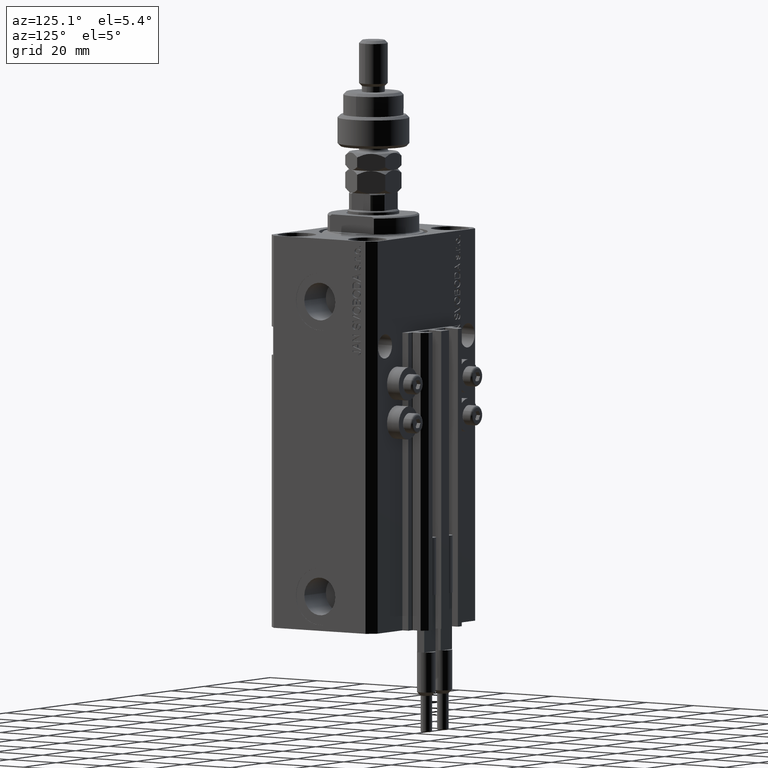
[diagram: clean part render]
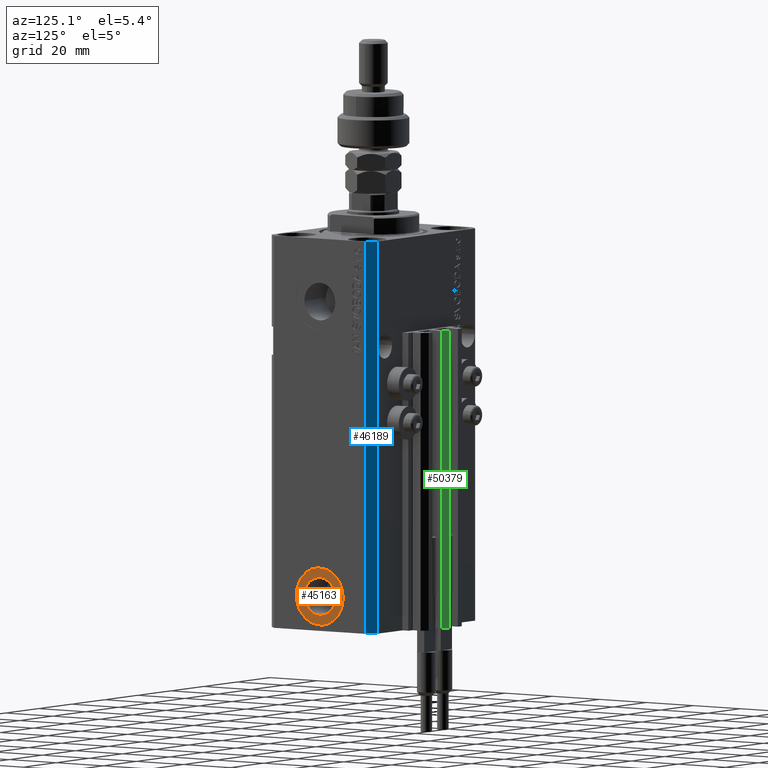
[diagram: same view with three faces highlighted in distinct colors, each labeled with its STEP entity id]
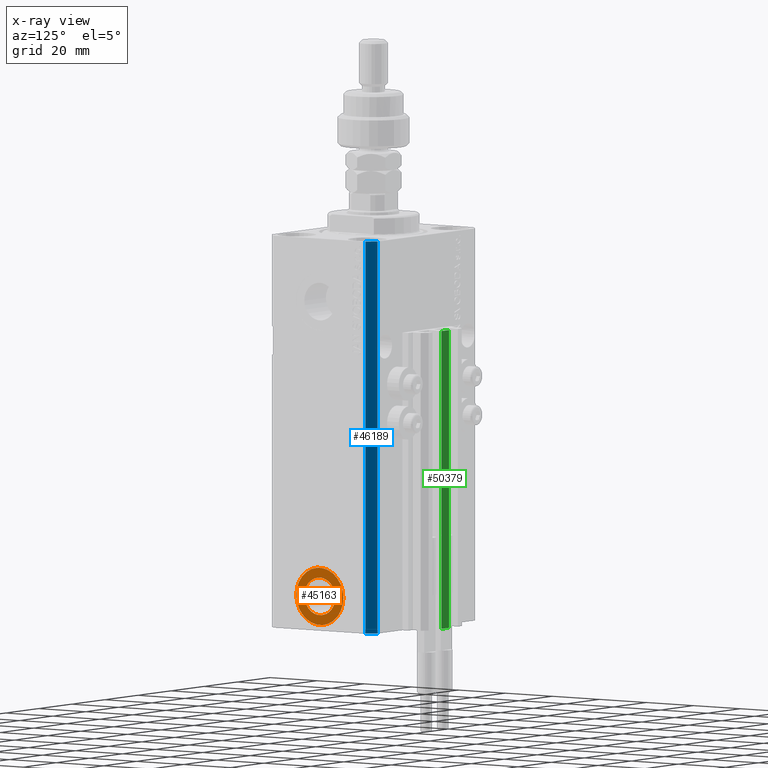
[diagram: x-ray of the same camera — body ghosted, the three highlighted faces saturated]
A machine part, auxiliary view with three faces highlighted in distinct colors.
The next image is the same camera in x-ray (body ghosted, the three faces saturated) — at least one of them is partly hidden behind the body in this view.
Their STEP definitions:

[orange] entity #45163 — the highlighted planar face has unit normal (1, -0, 0).
#2409 = DIRECTION ( 'NONE',  ( 1.318389841742372287E-14, 1.000000000000000000, 0.000000000000000000 ) ) ;
#2865 = CARTESIAN_POINT ( 'NONE',  ( 32.39999999999677271, -4.323464663203420885E-13, -125.0000000000000000 ) ) ;
#3165 = FACE_BOUND ( 'NONE', #19296, .T. ) ;
#6316 = CARTESIAN_POINT ( 'NONE',  ( 32.39999999999677271, -4.323464663203420885E-13, -125.0000000000000000 ) ) ;
#6554 = DIRECTION ( 'NONE',  ( 1.000000000000000000, -1.334402673828349134E-14, 0.000000000000000000 ) ) ;
#7470 = ORIENTED_EDGE ( 'NONE', *, *, #29738, .T. ) ;
#7518 = DIRECTION ( 'NONE',  ( 1.370906090437601279E-14, 1.000000000000000000, 0.000000000000000000 ) ) ;
#8111 = VERTEX_POINT ( 'NONE', #48959 ) ;
#9018 = CARTESIAN_POINT ( 'NONE',  ( 32.39999999999686509, 6.579999999999554205, -125.0000000000000000 ) ) ;
#10446 = FACE_OUTER_BOUND ( 'NONE', #27340, .T. ) ;
#12345 = CARTESIAN_POINT ( 'NONE',  ( 32.39999999999677271, -4.323464663203420885E-13, -125.0000000000000000 ) ) ;
#14669 = ORIENTED_EDGE ( 'NONE', *, *, #47160, .F. ) ;
#15347 = PLANE ( 'NONE',  #45874 ) ;
#16655 = DIRECTION ( 'NONE',  ( 1.000000000000000000, -1.334402673828349134E-14, 0.000000000000000000 ) ) ;
#17622 = DIRECTION ( 'NONE',  ( 1.370906090437601279E-14, 1.000000000000000000, 0.000000000000000000 ) ) ;
#18605 = CIRCLE ( 'NONE', #50102, 6.579999999999985860 ) ;
#19296 = EDGE_LOOP ( 'NONE', ( #41441, #14669 ) ) ;
#19335 = VERTEX_POINT ( 'NONE', #20654 ) ;
#20012 = CIRCLE ( 'NONE', #47358, 10.00000000000000888 ) ;
#20654 = CARTESIAN_POINT ( 'NONE',  ( 32.39999999999663771, -10.00000000000044054, -125.0000000000000000 ) ) ;
#20751 = AXIS2_PLACEMENT_3D ( 'NONE', #12345, #21147, #33096 ) ;
#21147 = DIRECTION ( 'NONE',  ( 1.000000000000000000, -1.334402673828349134E-14, 0.000000000000000000 ) ) ;
#22366 = DIRECTION ( 'NONE',  ( 1.334402673828349134E-14, 1.000000000000000000, 0.000000000000000000 ) ) ;
#22898 = ORIENTED_EDGE ( 'NONE', *, *, #28367, .T. ) ;
#23267 = CIRCLE ( 'NONE', #20751, 10.00000000000000888 ) ;
#24455 = AXIS2_PLACEMENT_3D ( 'NONE', #49797, #16655, #17622 ) ;
#26978 = CIRCLE ( 'NONE', #24455, 6.579999999999985860 ) ;
#27340 = EDGE_LOOP ( 'NONE', ( #22898, #7470 ) ) ;
#27399 = VERTEX_POINT ( 'NONE', #9018 ) ;
#28367 = EDGE_CURVE ( 'NONE', #8111, #19335, #23267, .T. ) ;
#29096 = VERTEX_POINT ( 'NONE', #34957 ) ;
#29738 = EDGE_CURVE ( 'NONE', #19335, #8111, #20012, .T. ) ;
#33096 = DIRECTION ( 'NONE',  ( 1.318389841742372287E-14, 1.000000000000000000, 0.000000000000000000 ) ) ;
#34957 = CARTESIAN_POINT ( 'NONE',  ( 32.39999999999668034, -6.580000000000417515, -125.0000000000000000 ) ) ;
#38919 = DIRECTION ( 'NONE',  ( 1.000000000000000000, -1.334402673828349134E-14, 0.000000000000000000 ) ) ;
#41441 = ORIENTED_EDGE ( 'NONE', *, *, #49029, .F. ) ;
#42368 = DIRECTION ( 'NONE',  ( 1.000000000000000000, -1.334402673828349134E-14, 0.000000000000000000 ) ) ;
#45163 = ADVANCED_FACE ( 'NONE', ( #3165, #10446 ), #15347, .T. ) ;
#45874 = AXIS2_PLACEMENT_3D ( 'NONE', #46251, #6554, #22366 ) ;
#46251 = CARTESIAN_POINT ( 'NONE',  ( 32.39999999999677271, -4.323464663203420885E-13, -125.0000000000000000 ) ) ;
#47160 = EDGE_CURVE ( 'NONE', #29096, #27399, #18605, .T. ) ;
#47358 = AXIS2_PLACEMENT_3D ( 'NONE', #6316, #42368, #2409 ) ;
#48959 = CARTESIAN_POINT ( 'NONE',  ( 32.39999999999690061, 9.999999999999577227, -125.0000000000000000 ) ) ;
#49029 = EDGE_CURVE ( 'NONE', #27399, #29096, #26978, .T. ) ;
#49797 = CARTESIAN_POINT ( 'NONE',  ( 32.39999999999677271, -4.323464663203420885E-13, -125.0000000000000000 ) ) ;
#50102 = AXIS2_PLACEMENT_3D ( 'NONE', #2865, #38919, #7518 ) ;

[blue] entity #46189 — the highlighted planar face has unit normal (0.7071, 0.7071, 0).
#1816 = VECTOR ( 'NONE', #38917, 1000.000000000000000 ) ;
#2021 = CARTESIAN_POINT ( 'NONE',  ( 29.49999999999707967, 22.49999999999951328, 0.000000000000000000 ) ) ;
#3079 = ORIENTED_EDGE ( 'NONE', *, *, #37578, .T. ) ;
#4704 = CARTESIAN_POINT ( 'NONE',  ( 32.49999999999702993, 19.49999999999945999, -137.0000000000000000 ) ) ;
#5546 = VERTEX_POINT ( 'NONE', #32777 ) ;
#8846 = PLANE ( 'NONE',  #35133 ) ;
#9981 = VECTOR ( 'NONE', #20573, 1000.000000000000000 ) ;
#12531 = LINE ( 'NONE', #19299, #29008 ) ;
#15240 = VERTEX_POINT ( 'NONE', #43290 ) ;
#16483 = ORIENTED_EDGE ( 'NONE', *, *, #34601, .F. ) ;
#19188 = LINE ( 'NONE', #43080, #1816 ) ;
#19299 = CARTESIAN_POINT ( 'NONE',  ( 32.49999999999702993, 19.49999999999945999, -137.0000000000000000 ) ) ;
#19764 = FACE_OUTER_BOUND ( 'NONE', #27534, .T. ) ;
#20010 = DIRECTION ( 'NONE',  ( 0.7071067811865597852, 0.7071067811865353603, -0.000000000000000000 ) ) ;
#20573 = DIRECTION ( 'NONE',  ( 0.000000000000000000, 0.000000000000000000, 1.000000000000000000 ) ) ;
#21250 = LINE ( 'NONE', #48256, #37391 ) ;
#26792 = EDGE_CURVE ( 'NONE', #15240, #5546, #12531, .T. ) ;
#27519 = EDGE_CURVE ( 'NONE', #36885, #31669, #32019, .T. ) ;
#27534 = EDGE_LOOP ( 'NONE', ( #16483, #45632, #3079, #28262 ) ) ;
#27810 = DIRECTION ( 'NONE',  ( -0.7071067811865353603, 0.7071067811865597852, 0.000000000000000000 ) ) ;
#28262 = ORIENTED_EDGE ( 'NONE', *, *, #27519, .T. ) ;
#29008 = VECTOR ( 'NONE', #43185, 1000.000000000000000 ) ;
#29544 = CARTESIAN_POINT ( 'NONE',  ( 29.49999999999707967, 22.49999999999951328, -137.0000000000000000 ) ) ;
#31669 = VERTEX_POINT ( 'NONE', #2021 ) ;
#32019 = LINE ( 'NONE', #44708, #9981 ) ;
#32777 = CARTESIAN_POINT ( 'NONE',  ( 32.49999999999702993, 19.49999999999945999, 0.000000000000000000 ) ) ;
#34601 = EDGE_CURVE ( 'NONE', #5546, #31669, #19188, .T. ) ;
#35133 = AXIS2_PLACEMENT_3D ( 'NONE', #4704, #20010, #27810 ) ;
#36885 = VERTEX_POINT ( 'NONE', #29544 ) ;
#37391 = VECTOR ( 'NONE', #40214, 1000.000000000000000 ) ;
#37578 = EDGE_CURVE ( 'NONE', #15240, #36885, #21250, .T. ) ;
#38917 = DIRECTION ( 'NONE',  ( -0.7071067811865352493, 0.7071067811865597852, 0.000000000000000000 ) ) ;
#40214 = DIRECTION ( 'NONE',  ( -0.7071067811865352493, 0.7071067811865597852, 0.000000000000000000 ) ) ;
#43080 = CARTESIAN_POINT ( 'NONE',  ( 32.49999999999702993, 19.49999999999945999, 0.000000000000000000 ) ) ;
#43185 = DIRECTION ( 'NONE',  ( 0.000000000000000000, 0.000000000000000000, 1.000000000000000000 ) ) ;
#43290 = CARTESIAN_POINT ( 'NONE',  ( 32.49999999999702993, 19.49999999999945999, -137.0000000000000000 ) ) ;
#44708 = CARTESIAN_POINT ( 'NONE',  ( 29.49999999999707967, 22.49999999999951328, -137.0000000000000000 ) ) ;
#45632 = ORIENTED_EDGE ( 'NONE', *, *, #26792, .F. ) ;
#46189 = ADVANCED_FACE ( 'NONE', ( #19764 ), #8846, .T. ) ;
#48256 = CARTESIAN_POINT ( 'NONE',  ( 32.49999999999702993, 19.49999999999945999, -137.0000000000000000 ) ) ;

[green] entity #50379 — the highlighted planar face has unit normal (0, -1, 0).
#779 = FACE_OUTER_BOUND ( 'NONE', #23677, .T. ) ;
#2123 = AXIS2_PLACEMENT_3D ( 'NONE', #12972, #9072, #48019 ) ;
#2631 = DIRECTION ( 'NONE',  ( 0.000000000000000000, 0.000000000000000000, 1.000000000000000000 ) ) ;
#3171 = CARTESIAN_POINT ( 'NONE',  ( 2.349999999999999645, 30.49999999999949907, -137.0000000000000000 ) ) ;
#3176 = VECTOR ( 'NONE', #20537, 1000.000000000000000 ) ;
#4431 = PLANE ( 'NONE',  #2123 ) ;
#4674 = VERTEX_POINT ( 'NONE', #16413 ) ;
#6467 = ORIENTED_EDGE ( 'NONE', *, *, #46086, .F. ) ;
#6538 = LINE ( 'NONE', #22351, #25336 ) ;
#8361 = VERTEX_POINT ( 'NONE', #40600 ) ;
#9072 = DIRECTION ( 'NONE',  ( 0.000000000000000000, -1.000000000000000000, 0.000000000000000000 ) ) ;
#11099 = ORIENTED_EDGE ( 'NONE', *, *, #20032, .T. ) ;
#12496 = LINE ( 'NONE', #33243, #3176 ) ;
#12972 = CARTESIAN_POINT ( 'NONE',  ( -2.350000000000003197, 30.49999999999949907, -137.0000000000000000 ) ) ;
#16413 = CARTESIAN_POINT ( 'NONE',  ( -2.350000000000003197, 30.49999999999949907, -137.0000000000000000 ) ) ;
#18994 = DIRECTION ( 'NONE',  ( 0.000000000000000000, 0.000000000000000000, 1.000000000000000000 ) ) ;
#20032 = EDGE_CURVE ( 'NONE', #33398, #41574, #12496, .T. ) ;
#20537 = DIRECTION ( 'NONE',  ( 1.000000000000000000, 0.000000000000000000, 0.000000000000000000 ) ) ;
#21306 = LINE ( 'NONE', #25194, #37313 ) ;
#22351 = CARTESIAN_POINT ( 'NONE',  ( -2.350000000000003197, 30.49999999999949907, -137.0000000000000000 ) ) ;
#23677 = EDGE_LOOP ( 'NONE', ( #11099, #6467, #24429, #50419 ) ) ;
#24429 = ORIENTED_EDGE ( 'NONE', *, *, #35384, .F. ) ;
#25194 = CARTESIAN_POINT ( 'NONE',  ( -2.350000000000003197, 30.49999999999949907, -137.0000000000000000 ) ) ;
#25336 = VECTOR ( 'NONE', #2631, 1000.000000000000000 ) ;
#26828 = VECTOR ( 'NONE', #18994, 1000.000000000000000 ) ;
#29085 = DIRECTION ( 'NONE',  ( 1.000000000000000000, 0.000000000000000000, 0.000000000000000000 ) ) ;
#33243 = CARTESIAN_POINT ( 'NONE',  ( -2.350000000000003197, 30.49999999999949907, -33.00000000000000000 ) ) ;
#33398 = VERTEX_POINT ( 'NONE', #50924 ) ;
#35384 = EDGE_CURVE ( 'NONE', #4674, #8361, #21306, .T. ) ;
#37313 = VECTOR ( 'NONE', #29085, 1000.000000000000000 ) ;
#40600 = CARTESIAN_POINT ( 'NONE',  ( 2.349999999999999645, 30.49999999999949907, -137.0000000000000000 ) ) ;
#41574 = VERTEX_POINT ( 'NONE', #43534 ) ;
#43534 = CARTESIAN_POINT ( 'NONE',  ( 2.349999999999999645, 30.49999999999949907, -33.00000000000000000 ) ) ;
#46086 = EDGE_CURVE ( 'NONE', #8361, #41574, #51186, .T. ) ;
#48019 = DIRECTION ( 'NONE',  ( 0.000000000000000000, -0.000000000000000000, -1.000000000000000000 ) ) ;
#50185 = EDGE_CURVE ( 'NONE', #4674, #33398, #6538, .T. ) ;
#50379 = ADVANCED_FACE ( 'NONE', ( #779 ), #4431, .F. ) ;
#50419 = ORIENTED_EDGE ( 'NONE', *, *, #50185, .T. ) ;
#50924 = CARTESIAN_POINT ( 'NONE',  ( -2.350000000000003197, 30.49999999999949907, -33.00000000000000000 ) ) ;
#51186 = LINE ( 'NONE', #3171, #26828 ) ;